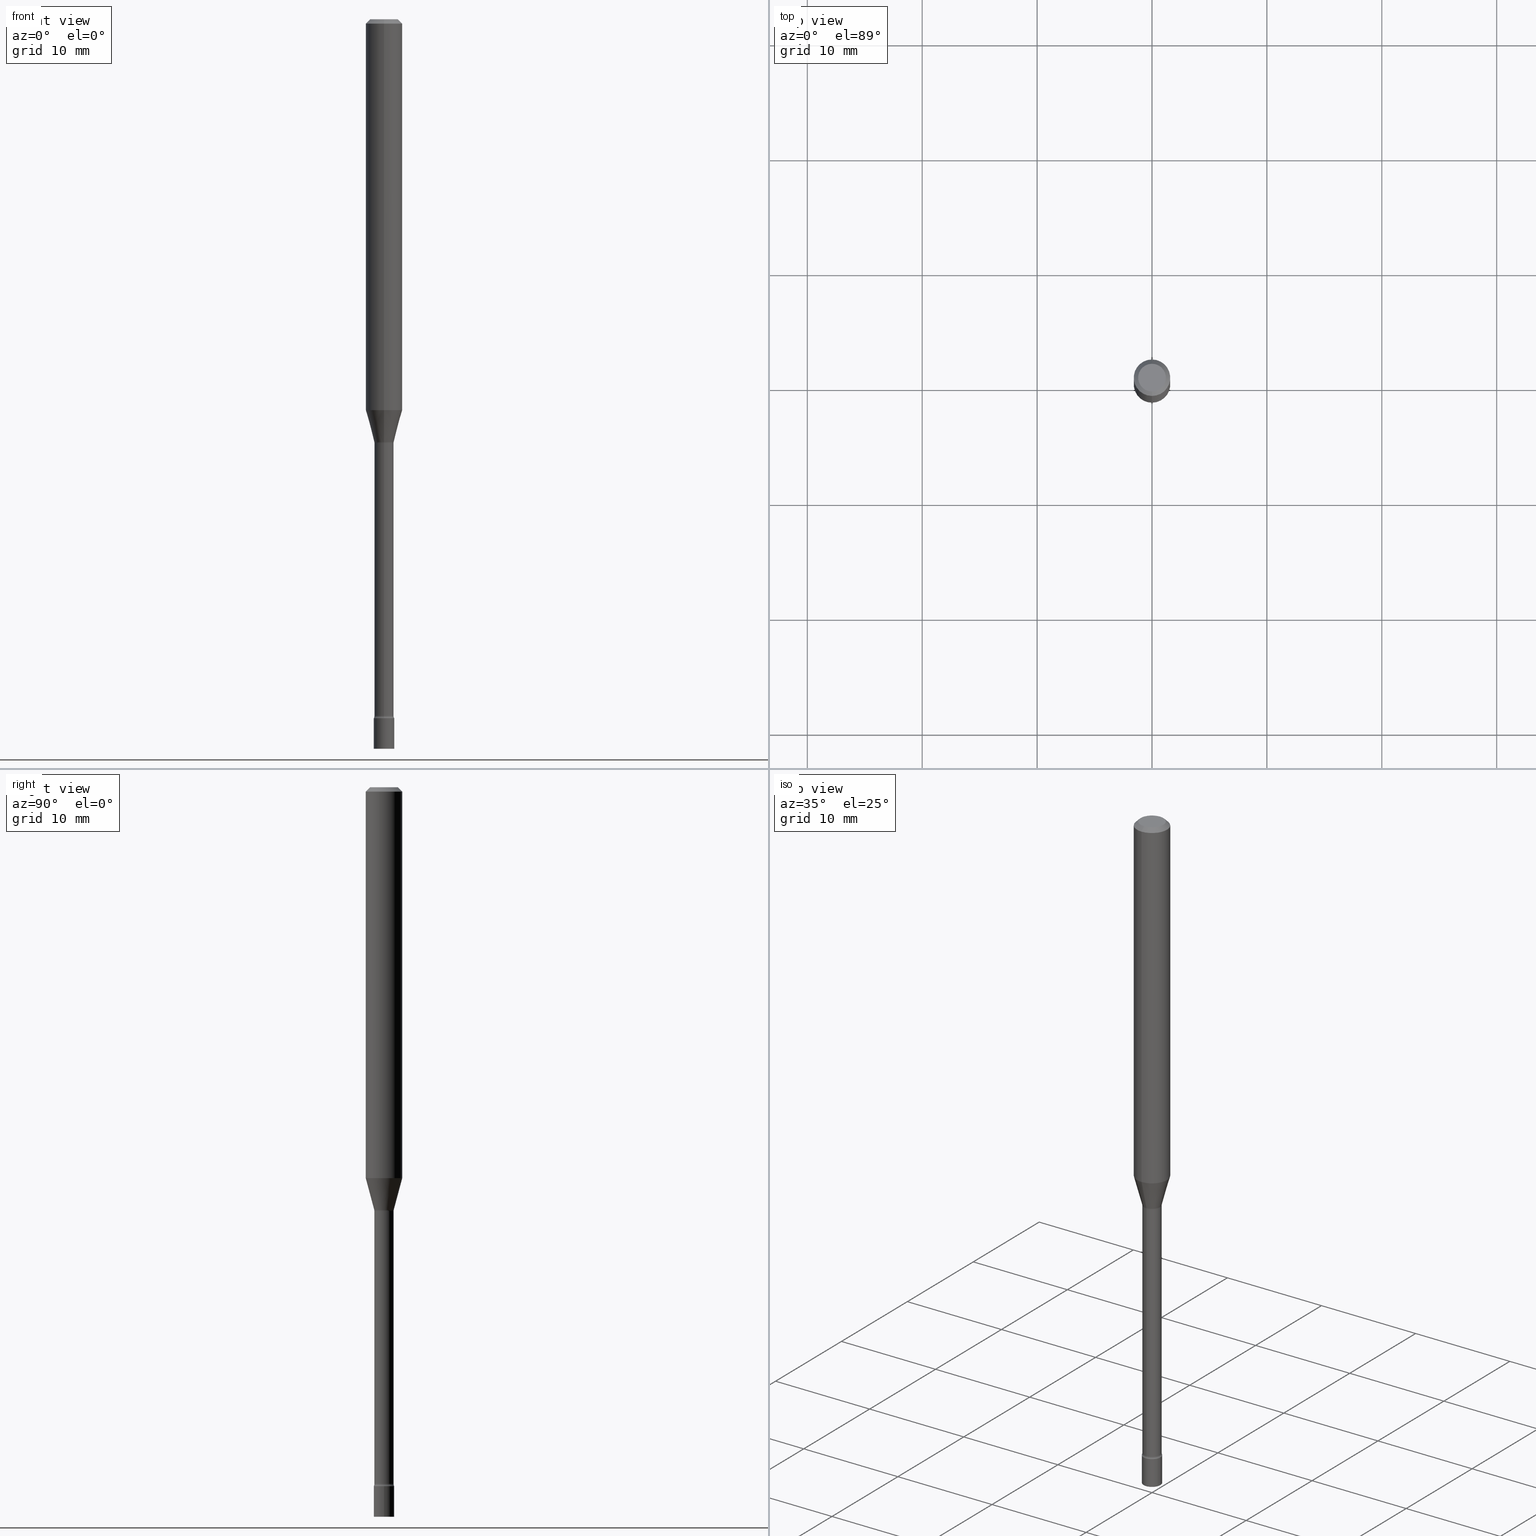
[diagram: canonical four-view strip — front | top / right | iso, engineering-drawing reading convention]
A machine part, canonical four-view strip (front | top / right | iso — engineering-drawing reading convention). The complete STEP part file that produces these views, byte-faithful:
ISO-10303-21;
HEADER;
FILE_DESCRIPTION (( 'STEP AP203' ),
    '1' );
FILE_NAME ('03631.STEP',
    '2024-03-08T22:13:49',
    ( '' ),
    ( '' ),
    'SwSTEP 2.0',
    'SolidWorks 2023',
    '' );
FILE_SCHEMA (( 'CONFIG_CONTROL_DESIGN' ));
ENDSEC;

DATA;
#1 = TOROIDAL_SURFACE ( 'NONE', #224, 0.04790000000000011610, 0.01499999999999997169 ) ;
#2 = EDGE_CURVE ( 'NONE', #339, #227, #19, .T. ) ;
#3 = CARTESIAN_POINT ( 'NONE',  ( 3.275824635247532374E-29, -4.676887466314633364E-15, -1.339531296095961554 ) ) ;
#4 = PRODUCT_RELATED_PRODUCT_CATEGORY ( 'detail', '', ( #357 ) ) ;
#5 = EDGE_LOOP ( 'NONE', ( #265, #259, #144, #417 ) ) ;
#6 = CARTESIAN_POINT ( 'NONE',  ( 0.03500000000000000333, -2.444036937190193250E-16, 1.706661871528577808E-30 ) ) ;
#7 = EDGE_LOOP ( 'NONE', ( #232, #252 ) ) ;
#8 = CYLINDRICAL_SURFACE ( 'NONE', #458, 0.06250000000000000000 ) ;
#9 = EDGE_CURVE ( 'NONE', #450, #457, #323, .T. ) ;
#10 = CIRCLE ( 'NONE', #331, 0.03289999999999999175 ) ;
#11 = APPROVAL_PERSON_ORGANIZATION ( #228, #105, #236 ) ;
#12 = DIRECTION ( 'NONE',  ( -2.445500635031716319E-29, 3.491435758123258259E-15, 1.000000000000000000 ) ) ;
#13 = EDGE_LOOP ( 'NONE', ( #383, #411 ) ) ;
#14 = ORIENTED_EDGE ( 'NONE', *, *, #184, .F. ) ;
#15 = ORIENTED_EDGE ( 'NONE', *, *, #147, .T. ) ;
#16 = AXIS2_PLACEMENT_3D ( 'NONE', #336, #23, #445 ) ;
#17 = EDGE_CURVE ( 'NONE', #450, #339, #405, .T. ) ;
#18 = DIRECTION ( 'NONE',  ( -6.982962677686265922E-15, -1.000000000000000000, 0.000000000000000000 ) ) ;
#19 = CIRCLE ( 'NONE', #172, 0.01500000000000003587 ) ;
#20 = DIRECTION ( 'NONE',  ( -6.982962677686266711E-15, -1.000000000000000000, 3.491435758123258259E-15 ) ) ;
#21 = ORIENTED_EDGE ( 'NONE', *, *, #231, .T. ) ;
#22 = APPROVAL_STATUS ( 'not_yet_approved' ) ;
#23 = DIRECTION ( 'NONE',  ( -2.445500635031716319E-29, 3.491435758123258259E-15, 1.000000000000000000 ) ) ;
#24 = ORIENTED_EDGE ( 'NONE', *, *, #178, .T. ) ;
#25 = DATE_AND_TIME ( #273, #424 ) ;
#26 = ADVANCED_FACE ( 'NONE', ( #317 ), #478, .T. ) ;
#27 = ORIENTED_EDGE ( 'NONE', *, *, #249, .T. ) ;
#28 = CIRCLE ( 'NONE', #109, 0.04749999999999999362 ) ;
#29 = LOCAL_TIME ( 17, 13, 49.00000000000000000, #466 ) ;
#30 = AXIS2_PLACEMENT_3D ( 'NONE', #157, #312, #278 ) ;
#31 = ORIENTED_EDGE ( 'NONE', *, *, #269, .T. ) ;
#32 = CARTESIAN_POINT ( 'NONE',  ( -4.364351673553916201E-16, -0.06250000000000000000, 2.182147348827036166E-16 ) ) ;
#33 = CARTESIAN_POINT ( 'NONE',  ( 2.486899575160934151E-16, 0.03499999999999162115, -2.395000000000000018 ) ) ;
#34 = PERSON_AND_ORGANIZATION ( #476, #207 ) ;
#35 = DIRECTION ( 'NONE',  ( 1.000000000000000000, -6.982962677686265922E-15, 4.876176775795936353E-29 ) ) ;
#36 = CARTESIAN_POINT ( 'NONE',  ( -0.03500000000000000333, -8.296710619302563893E-15, -2.395000000000000018 ) ) ;
#37 = UNCERTAINTY_MEASURE_WITH_UNIT (LENGTH_MEASURE( 1.000000000000000082E-05 ), #368, 'distance_accuracy_value', 'NONE');
#38 = AXIS2_PLACEMENT_3D ( 'NONE', #283, #196, #350 ) ;
#39 = MANIFOLD_SOLID_BREP ( 'Body-Move/Copy2[1]', #484 ) ;
#40 = FACE_OUTER_BOUND ( 'NONE', #148, .T. ) ;
#41 = AXIS2_PLACEMENT_3D ( 'NONE', #488, #52, #293 ) ;
#42 = DIRECTION ( 'NONE',  ( -2.445500635031716319E-29, 3.491435758123258259E-15, 1.000000000000000000 ) ) ;
#43 = CARTESIAN_POINT ( 'NONE',  ( 0.000000000000000000, 0.000000000000000000, 0.000000000000000000 ) ) ;
#44 = CARTESIAN_POINT ( 'NONE',  ( 6.113672015462842613E-29, -8.728703347107864943E-15, -2.500000000000000000 ) ) ;
#45 = DIRECTION ( 'NONE',  ( 1.000000000000000000, -6.982962677686276966E-15, 0.000000000000000000 ) ) ;
#46 = CC_DESIGN_APPROVAL ( #161, ( #435 ) ) ;
#47 = ADVANCED_FACE ( 'NONE', ( #40 ), #347, .T. ) ;
#48 = ADVANCED_FACE ( 'NONE', ( #81 ), #388, .F. ) ;
#49 = DIRECTION ( 'NONE',  ( 7.105427357601001859E-15, 1.000000000000000000, 0.000000000000000000 ) ) ;
#50 = DIRECTION ( 'NONE',  ( -1.000000000000000000, 6.982962677686265922E-15, -4.876176775795935793E-29 ) ) ;
#51 = ORIENTED_EDGE ( 'NONE', *, *, #422, .T. ) ;
#52 = DIRECTION ( 'NONE',  ( -2.445500635031716319E-29, 3.491435758123258259E-15, 1.000000000000000000 ) ) ;
#53 = FACE_OUTER_BOUND ( 'NONE', #343, .T. ) ;
#54 = CONICAL_SURFACE ( 'NONE', #359, 0.03341111260566397012, 0.2617993877991502405 ) ;
#55 = LENGTH_MEASURE_WITH_UNIT ( LENGTH_MEASURE( 0.02539999999999999897 ), #101 );
#56 = ORIENTED_EDGE ( 'NONE', *, *, #239, .T. ) ;
#57 = CARTESIAN_POINT ( 'NONE',  ( 0.000000000000000000, 0.000000000000000000, 0.000000000000000000 ) ) ;
#58 = EDGE_CURVE ( 'NONE', #173, #177, #136, .T. ) ;
#59 = CARTESIAN_POINT ( 'NONE',  ( 3.403499704291234252E-16, 0.04789999999999493274, -1.451974787463811367 ) ) ;
#60 = CONICAL_SURFACE ( 'NONE', #423, 0.06250000000000000000, 0.7853981633974483900 ) ;
#61 = AXIS2_PLACEMENT_3D ( 'NONE', #474, #202, #285 ) ;
#62 = APPLICATION_CONTEXT ( 'configuration controlled 3d designs of mechanical parts and assemblies' ) ;
#63 = CYLINDRICAL_SURFACE ( 'NONE', #16, 0.06250000000000000000 ) ;
#64 = VERTEX_POINT ( 'NONE', #510 ) ;
#65 = APPROVAL_DATE_TIME ( #508, #127 ) ;
#66 = DIRECTION ( 'NONE',  ( -2.445500635031716319E-29, 3.491435758123258259E-15, 1.000000000000000000 ) ) ;
#67 = DIRECTION ( 'NONE',  ( -6.982962677686268288E-15, -1.000000000000000000, 0.000000000000000000 ) ) ;
#68 = PERSON_AND_ORGANIZATION ( #476, #207 ) ;
#69 = ORIENTED_EDGE ( 'NONE', *, *, #295, .T. ) ;
#70 = APPROVAL_ROLE ( '' ) ;
#71 = AXIS2_PLACEMENT_3D ( 'NONE', #216, #12, #414 ) ;
#72 = FACE_OUTER_BOUND ( 'NONE', #5, .T. ) ;
#73 = VERTEX_POINT ( 'NONE', #395 ) ;
#74 = CARTESIAN_POINT ( 'NONE',  ( 2.337685600650734449E-16, 0.03290000000000006808, -1.148682364422554388E-16 ) ) ;
#75 = DIRECTION ( 'NONE',  ( -2.445500635031716319E-29, 3.491435758123258259E-15, 1.000000000000000000 ) ) ;
#76 = LINE ( 'NONE', #399, #110 ) ;
#77 = ADVANCED_BREP_SHAPE_REPRESENTATION ( '03631', ( #39, #379, #88 ), #490 ) ;
#78 = CARTESIAN_POINT ( 'NONE',  ( -4.364351673553590303E-16, -0.06250000000000470457, -1.339531296095961332 ) ) ;
#79 = CARTESIAN_POINT ( 'NONE',  ( 3.541311132705443544E-29, -5.055921941810253520E-15, -1.448092501787273223 ) ) ;
#80 = AXIS2_PLACEMENT_3D ( 'NONE', #486, #520, #210 ) ;
#81 = FACE_OUTER_BOUND ( 'NONE', #13, .T. ) ;
#82 = CARTESIAN_POINT ( 'NONE',  ( 2.374002335562078674E-16, 0.03341111260565891861, -1.448092501787273223 ) ) ;
#83 = EDGE_CURVE ( 'NONE', #371, #292, #385, .T. ) ;
#84 = CC_DESIGN_PERSON_AND_ORGANIZATION_ASSIGNMENT ( #117, #277, ( #435 ) ) ;
#85 = CARTESIAN_POINT ( 'NONE',  ( -4.287811248607203282E-16, -0.06250000000000005551, -0.01499999999999981209 ) ) ;
#86 = ADVANCED_FACE ( 'NONE', ( #353 ), #258, .T. ) ;
#87 = AXIS2_PLACEMENT_3D ( 'NONE', #392, #42, #203 ) ;
#88 = AXIS2_PLACEMENT_3D ( 'NONE', #501, #145, #455 ) ;
#89 = EDGE_CURVE ( 'NONE', #400, #73, #100, .T. ) ;
#90 = AXIS2_PLACEMENT_3D ( 'NONE', #111, #268, #67 ) ;
#91 = CC_DESIGN_DATE_AND_TIME_ASSIGNMENT ( #471, #150, ( #256 ) ) ;
#92 = LINE ( 'NONE', #253, #99 ) ;
#93 = ORIENTED_EDGE ( 'NONE', *, *, #175, .T. ) ;
#94 = CYLINDRICAL_SURFACE ( 'NONE', #372, 0.03290000000000006808 ) ;
#95 = DIRECTION ( 'NONE',  ( -2.445500635031716319E-29, 3.491435758123258259E-15, 1.000000000000000000 ) ) ;
#96 = CARTESIAN_POINT ( 'NONE',  ( 3.407447217031516106E-16, 0.03341111260565891167, -1.448092501787273223 ) ) ;
#97 = TOROIDAL_SURFACE ( 'NONE', #447, 0.04790000000000011610, 0.01499999999999997169 ) ;
#98 = ORIENTED_EDGE ( 'NONE', *, *, #439, .F. ) ;
#99 = VECTOR ( 'NONE', #394, 39.37007874015748143 ) ;
#100 = CIRCLE ( 'NONE', #384, 0.03500000000000000333 ) ;
#101 =( LENGTH_UNIT ( ) NAMED_UNIT ( * ) SI_UNIT ( $, .METRE. ) );
#102 = ADVANCED_FACE ( 'NONE', ( #123 ), #391, .T. ) ;
#103 = DIRECTION ( 'NONE',  ( -2.445500635031716319E-29, 3.491435758123258259E-15, 1.000000000000000000 ) ) ;
#104 = EDGE_LOOP ( 'NONE', ( #332, #304, #309, #463 ) ) ;
#105 = APPROVAL ( #22, 'UNSPECIFIED' ) ;
#106 = DIRECTION ( 'NONE',  ( -2.445500635031716319E-29, 3.491435758123258259E-15, 1.000000000000000000 ) ) ;
#107 = ORIENTED_EDGE ( 'NONE', *, *, #386, .T. ) ;
#108 = ORIENTED_EDGE ( 'NONE', *, *, #83, .F. ) ;
#109 = AXIS2_PLACEMENT_3D ( 'NONE', #223, #106, #496 ) ;
#110 = VECTOR ( 'NONE', #213, 39.37007874015748143 ) ;
#111 = CARTESIAN_POINT ( 'NONE',  ( -3.344839122611367138E-16, -0.04790000000000507741, -1.451974787463810923 ) ) ;
#112 = MECHANICAL_CONTEXT ( 'NONE', #62, 'mechanical' ) ;
#113 = ORIENTED_EDGE ( 'NONE', *, *, #473, .T. ) ;
#114 = PERSON_AND_ORGANIZATION ( #476, #207 ) ;
#115 = ORIENTED_EDGE ( 'NONE', *, *, #175, .F. ) ;
#116 = DIMENSIONAL_EXPONENTS ( 1.000000000000000000, 0.000000000000000000, 0.000000000000000000, 0.000000000000000000, 0.000000000000000000, 0.000000000000000000, 0.000000000000000000 ) ;
#117 = PERSON_AND_ORGANIZATION ( #476, #207 ) ;
#118 = LOCAL_TIME ( 17, 13, 49.00000000000000000, #187 ) ;
#119 = CARTESIAN_POINT ( 'NONE',  ( 6.113672015462842613E-29, -8.728703347107864943E-15, -2.500000000000000000 ) ) ;
#120 = LINE ( 'NONE', #82, #152 ) ;
#121 = CALENDAR_DATE ( 2024, 8, 3 ) ;
#122 = CARTESIAN_POINT ( 'NONE',  ( 3.550759050110043662E-29, -5.069542874900639233E-15, -1.451974787463811145 ) ) ;
#123 = FACE_OUTER_BOUND ( 'NONE', #189, .T. ) ;
#124 = DIRECTION ( 'NONE',  ( -2.445468806185136877E-29, 3.491481338843145188E-15, 1.000000000000000000 ) ) ;
#125 = DIRECTION ( 'NONE',  ( -2.438088387897960049E-29, 3.491481338843145188E-15, 1.000000000000000000 ) ) ;
#126 = CARTESIAN_POINT ( 'NONE',  ( 3.668250952547581782E-31, -5.237153637184897940E-17, -0.01500000000000003067 ) ) ;
#127 = APPROVAL ( #314, 'UNSPECIFIED' ) ;
#128 = CIRCLE ( 'NONE', #87, 0.06250000000000000000 ) ;
#129 = CARTESIAN_POINT ( 'NONE',  ( 5.856974020900960838E-29, -8.361988640705202472E-15, -2.395000000000000018 ) ) ;
#130 = LINE ( 'NONE', #364, #233 ) ;
#131 = CARTESIAN_POINT ( 'NONE',  ( 4.440892098500955511E-16, 0.06249999999999995143, -0.01500000000000024751 ) ) ;
#132 = CARTESIAN_POINT ( 'NONE',  ( 4.364351673553919652E-16, 0.06249999999999995143, -0.01500000000000024751 ) ) ;
#133 = ORIENTED_EDGE ( 'NONE', *, *, #433, .F. ) ;
#134 = CARTESIAN_POINT ( 'NONE',  ( -2.297394720958425553E-16, -0.03290000000000506408, -1.451974787463811145 ) ) ;
#135 = CIRCLE ( 'NONE', #299, 0.03500000000000000333 ) ;
#136 = CIRCLE ( 'NONE', #198, 0.04749999999999999362 ) ;
#137 = CIRCLE ( 'NONE', #416, 0.03341111260566397012 ) ;
#138 =( NAMED_UNIT ( * ) PLANE_ANGLE_UNIT ( ) SI_UNIT ( $, .RADIAN. ) );
#139 = DIRECTION ( 'NONE',  ( -6.982962677686265922E-15, -1.000000000000000000, 3.491435758123258259E-15 ) ) ;
#140 = EDGE_LOOP ( 'NONE', ( #418, #425, #446, #181 ) ) ;
#141 = ORIENTED_EDGE ( 'NONE', *, *, #231, .F. ) ;
#142 = TOROIDAL_SURFACE ( 'NONE', #413, 0.04790000000000000507, 0.01500000000000003587 ) ;
#143 = ADVANCED_FACE ( 'NONE', ( #296 ), #149, .T. ) ;
#144 = ORIENTED_EDGE ( 'NONE', *, *, #9, .T. ) ;
#145 = DIRECTION ( 'NONE',  ( 0.000000000000000000, 0.000000000000000000, 1.000000000000000000 ) ) ;
#146 = PLANE ( 'NONE',  #307 ) ;
#147 = EDGE_CURVE ( 'NONE', #406, #292, #287, .T. ) ;
#148 = EDGE_LOOP ( 'NONE', ( #262, #107 ) ) ;
#149 = CYLINDRICAL_SURFACE ( 'NONE', #264, 0.03500000000000000333 ) ;
#150 = DATE_TIME_ROLE ( 'creation_date' ) ;
#151 = EDGE_LOOP ( 'NONE', ( #465, #69, #24, #141 ) ) ;
#152 = VECTOR ( 'NONE', #427, 39.37007874015748143 ) ;
#153 = DIRECTION ( 'NONE',  ( 1.000000000000000000, -6.982962677686265922E-15, 4.876176775795936353E-29 ) ) ;
#154 = ORIENTED_EDGE ( 'NONE', *, *, #444, .T. ) ;
#155 = ORIENTED_EDGE ( 'NONE', *, *, #89, .F. ) ;
#156 = ADVANCED_FACE ( 'NONE', ( #430 ), #492, .T. ) ;
#157 = CARTESIAN_POINT ( 'NONE',  ( 3.668250952547581782E-31, -5.237153637184897940E-17, -0.01500000000000003067 ) ) ;
#158 = CARTESIAN_POINT ( 'NONE',  ( 5.856897790813402508E-29, -8.362097806529333416E-15, -2.395000000000000018 ) ) ;
#159 = DIRECTION ( 'NONE',  ( -2.445500635031716319E-29, 3.491435758123258259E-15, 1.000000000000000000 ) ) ;
#160 = DIRECTION ( 'NONE',  ( -6.982962677686265922E-15, -1.000000000000000000, 0.000000000000000000 ) ) ;
#161 = APPROVAL ( #464, 'UNSPECIFIED' ) ;
#162 = LINE ( 'NONE', #74, #169 ) ;
#163 = FACE_OUTER_BOUND ( 'NONE', #222, .T. ) ;
#164 = AXIS2_PLACEMENT_3D ( 'NONE', #219, #300, #297 ) ;
#165 = LINE ( 'NONE', #85, #506 ) ;
#166 = EDGE_LOOP ( 'NONE', ( #420, #374, #188, #14 ) ) ;
#167 = CARTESIAN_POINT ( 'NONE',  ( -0.03500000000000000333, 2.486899575160350887E-16, -1.721627281589217108E-30 ) ) ;
#168 = EDGE_LOOP ( 'NONE', ( #500, #377, #211, #15 ) ) ;
#169 = VECTOR ( 'NONE', #387, 39.37007874015748143 ) ;
#170 = DIRECTION ( 'NONE',  ( -6.982962677686265922E-15, -1.000000000000000000, 3.491435758123257865E-15 ) ) ;
#171 = LOCAL_TIME ( 17, 13, 49.00000000000000000, #378 ) ;
#172 = AXIS2_PLACEMENT_3D ( 'NONE', #59, #308, #461 ) ;
#173 = VERTEX_POINT ( 'NONE', #396 ) ;
#174 = AXIS2_PLACEMENT_3D ( 'NONE', #316, #208, #358 ) ;
#175 = EDGE_CURVE ( 'NONE', #305, #406, #76, .T. ) ;
#176 = ORIENTED_EDGE ( 'NONE', *, *, #375, .F. ) ;
#177 = VERTEX_POINT ( 'NONE', #483 ) ;
#178 = EDGE_CURVE ( 'NONE', #328, #457, #130, .T. ) ;
#179 = FACE_OUTER_BOUND ( 'NONE', #310, .T. ) ;
#180 = SECURITY_CLASSIFICATION ( '', '', #428 ) ;
#181 = ORIENTED_EDGE ( 'NONE', *, *, #386, .F. ) ;
#182 = CARTESIAN_POINT ( 'NONE',  ( 0.000000000000000000, 0.000000000000000000, 0.000000000000000000 ) ) ;
#183 = ADVANCED_FACE ( 'NONE', ( #235 ), #8, .T. ) ;
#184 = EDGE_CURVE ( 'NONE', #328, #271, #481, .T. ) ;
#185 = CARTESIAN_POINT ( 'NONE',  ( 3.668250952547581782E-31, -5.237153637184897940E-17, -0.01500000000000003067 ) ) ;
#186 = ORIENTED_EDGE ( 'NONE', *, *, #452, .F. ) ;
#187 = COORDINATED_UNIVERSAL_TIME_OFFSET ( 5, 0, .BEHIND. ) ;
#188 = ORIENTED_EDGE ( 'NONE', *, *, #512, .T. ) ;
#189 = EDGE_LOOP ( 'NONE', ( #334, #505, #113, #218 ) ) ;
#190 = AXIS2_PLACEMENT_3D ( 'NONE', #479, #389, #517 ) ;
#191 = ORIENTED_EDGE ( 'NONE', *, *, #407, .F. ) ;
#192 = DIRECTION ( 'NONE',  ( -2.445500635031716319E-29, 3.491435758123258259E-15, 1.000000000000000000 ) ) ;
#193 = CARTESIAN_POINT ( 'NONE',  ( 2.337685600651317713E-16, 0.03289999999999492636, -1.451974787463811145 ) ) ;
#194 = PERSON_AND_ORGANIZATION_ROLE ( 'classification_officer' ) ;
#195 = CARTESIAN_POINT ( 'NONE',  ( 0.000000000000000000, 0.000000000000000000, 0.000000000000000000 ) ) ;
#196 = DIRECTION ( 'NONE',  ( -2.445500635031716319E-29, 3.491435758123258259E-15, 1.000000000000000000 ) ) ;
#197 = CIRCLE ( 'NONE', #71, 0.03290000000000014441 ) ;
#198 = AXIS2_PLACEMENT_3D ( 'NONE', #469, #245, #390 ) ;
#199 = CARTESIAN_POINT ( 'NONE',  ( 5.838179168722291637E-29, -8.335372575132119928E-15, -2.387345589506696619 ) ) ;
#200 = AXIS2_PLACEMENT_3D ( 'NONE', #238, #354, #50 ) ;
#201 = ADVANCED_FACE ( 'NONE', ( #330 ), #1, .F. ) ;
#202 = DIRECTION ( 'NONE',  ( -2.445500635031715758E-29, 3.491435758123258259E-15, 1.000000000000000000 ) ) ;
#203 = DIRECTION ( 'NONE',  ( -6.982962677686265922E-15, -1.000000000000000000, 4.370956789862821150E-15 ) ) ;
#204 = CARTESIAN_POINT ( 'NONE',  ( 2.412292587906128890E-16, 0.03289999999999180386, -2.387345589506696175 ) ) ;
#205 = CARTESIAN_POINT ( 'NONE',  ( 5.856974020900960838E-29, -8.361988640705202472E-15, -2.395000000000000018 ) ) ;
#206 = DIRECTION ( 'NONE',  ( -2.445468806185136597E-29, 3.491481338843145583E-15, 1.000000000000000000 ) ) ;
#207 = ORGANIZATION ( 'UNSPECIFIED', 'UNSPECIFIED', '' ) ;
#208 = DIRECTION ( 'NONE',  ( -2.445468806185136597E-29, 3.491481338843145583E-15, 1.000000000000000000 ) ) ;
#209 = EDGE_CURVE ( 'NONE', #339, #305, #120, .T. ) ;
#210 = DIRECTION ( 'NONE',  ( -6.982962677686265922E-15, -1.000000000000000000, 0.000000000000000000 ) ) ;
#211 = ORIENTED_EDGE ( 'NONE', *, *, #452, .T. ) ;
#212 = LINE ( 'NONE', #6, #402 ) ;
#213 = DIRECTION ( 'NONE',  ( -2.445500635031716319E-29, 3.491435758123258259E-15, 1.000000000000000000 ) ) ;
#214 = ORIENTED_EDGE ( 'NONE', *, *, #184, .T. ) ;
#215 = AXIS2_PLACEMENT_3D ( 'NONE', #44, #206, #45 ) ;
#216 = CARTESIAN_POINT ( 'NONE',  ( 5.838255155178791829E-29, -8.335263758201529460E-15, -2.387345589506696175 ) ) ;
#217 = EDGE_CURVE ( 'NONE', #497, #227, #162, .T. ) ;
#218 = ORIENTED_EDGE ( 'NONE', *, *, #444, .F. ) ;
#219 = CARTESIAN_POINT ( 'NONE',  ( 5.856897790813402508E-29, -8.362097806529333416E-15, -2.395000000000000018 ) ) ;
#220 = VERTEX_POINT ( 'NONE', #36 ) ;
#221 = FACE_OUTER_BOUND ( 'NONE', #7, .T. ) ;
#222 = EDGE_LOOP ( 'NONE', ( #494, #51, #31, #186 ) ) ;
#223 = CARTESIAN_POINT ( 'NONE',  ( 7.071428225012707058E-46, -1.009586217731292719E-31, -2.891607601206366996E-17 ) ) ;
#224 = AXIS2_PLACEMENT_3D ( 'NONE', #475, #159, #139 ) ;
#225 = VERTEX_POINT ( 'NONE', #33 ) ;
#226 = DATE_TIME_ROLE ( 'classification_date' ) ;
#227 = VERTEX_POINT ( 'NONE', #193 ) ;
#228 = PERSON_AND_ORGANIZATION ( #476, #207 ) ;
#229 = EDGE_LOOP ( 'NONE', ( #115, #154, #441, #442 ) ) ;
#230 = PERSON_AND_ORGANIZATION_ROLE ( 'creator' ) ;
#231 = EDGE_CURVE ( 'NONE', #227, #457, #10, .T. ) ;
#232 = ORIENTED_EDGE ( 'NONE', *, *, #58, .T. ) ;
#233 = VECTOR ( 'NONE', #288, 39.37007874015748143 ) ;
#234 = CC_DESIGN_PERSON_AND_ORGANIZATION_ASSIGNMENT ( #68, #230, ( #435 ) ) ;
#235 = FACE_OUTER_BOUND ( 'NONE', #229, .T. ) ;
#236 = APPROVAL_ROLE ( '' ) ;
#237 = DIRECTION ( 'NONE',  ( 1.000000000000000000, -6.982962677686276966E-15, 0.000000000000000000 ) ) ;
#238 = CARTESIAN_POINT ( 'NONE',  ( 2.444036937190804617E-16, 0.03499999999999127420, -2.500000000000000000 ) ) ;
#239 = EDGE_CURVE ( 'NONE', #328, #497, #382, .T. ) ;
#240 = ADVANCED_FACE ( 'NONE', ( #514 ), #54, .T. ) ;
#241 = DESIGN_CONTEXT ( 'detailed design', #487, 'design' ) ;
#242 = DIRECTION ( 'NONE',  ( -2.445468806185136597E-29, 3.491481338843145583E-15, 1.000000000000000000 ) ) ;
#243 = DIRECTION ( 'NONE',  ( -2.445500635031716319E-29, 3.491435758123258259E-15, 1.000000000000000000 ) ) ;
#244 = AXIS2_PLACEMENT_3D ( 'NONE', #126, #286, #436 ) ;
#245 = DIRECTION ( 'NONE',  ( -2.445500635031716319E-29, 3.491435758123258259E-15, 1.000000000000000000 ) ) ;
#246 = CARTESIAN_POINT ( 'NONE',  ( -2.444036937189607028E-16, -0.03500000000000834388, -2.395000000000000018 ) ) ;
#247 = DIRECTION ( 'NONE',  ( -6.982962677686265922E-15, -1.000000000000000000, 3.491435758123258259E-15 ) ) ;
#248 = CARTESIAN_POINT ( 'NONE',  ( 3.541311132705443544E-29, -5.055921941810253520E-15, -1.448092501787273223 ) ) ;
#249 = EDGE_CURVE ( 'NONE', #371, #305, #128, .T. ) ;
#250 = CC_DESIGN_SECURITY_CLASSIFICATION ( #180, ( #435 ) ) ;
#251 = DIRECTION ( 'NONE',  ( 4.937700262164548042E-15, 0.7071067811865451302, -0.7071067811865499042 ) ) ;
#252 = ORIENTED_EDGE ( 'NONE', *, *, #302, .T. ) ;
#253 = CARTESIAN_POINT ( 'NONE',  ( -2.333085523452891938E-16, -0.03341111260566902164, -1.448092501787273223 ) ) ;
#254 = CARTESIAN_POINT ( 'NONE',  ( 3.668250952547581782E-31, -5.237153637184897940E-17, -0.01500000000000003067 ) ) ;
#255 = ORIENTED_EDGE ( 'NONE', *, *, #2, .T. ) ;
#256 = PRODUCT_DEFINITION ( 'UNKNOWN', '', #435, #241 ) ;
#257 = CIRCLE ( 'NONE', #164, 0.03500000000000000333 ) ;
#258 = CONICAL_SURFACE ( 'NONE', #30, 0.06250000000000000000, 0.7853981633974483900 ) ;
#259 = ORIENTED_EDGE ( 'NONE', *, *, #17, .F. ) ;
#260 =( NAMED_UNIT ( * ) SI_UNIT ( $, .STERADIAN. ) SOLID_ANGLE_UNIT ( ) );
#261 = APPLICATION_PROTOCOL_DEFINITION ( 'international standard', 'config_control_design', 1994, #62 ) ;
#262 = ORIENTED_EDGE ( 'NONE', *, *, #298, .T. ) ;
#263 = DIRECTION ( 'NONE',  ( -2.445468806185136597E-29, 3.491481338843145583E-15, 1.000000000000000000 ) ) ;
#264 = AXIS2_PLACEMENT_3D ( 'NONE', #182, #263, #153 ) ;
#265 = ORIENTED_EDGE ( 'NONE', *, *, #2, .F. ) ;
#266 = CIRCLE ( 'NONE', #393, 0.06250000000000000000 ) ;
#267 = APPROVAL_DATE_TIME ( #25, #161 ) ;
#268 = DIRECTION ( 'NONE',  ( -1.000000000000000000, 6.982962677686265922E-15, -4.883557194083112901E-29 ) ) ;
#269 = EDGE_CURVE ( 'NONE', #292, #406, #491, .T. ) ;
#270 = PERSON_AND_ORGANIZATION ( #476, #207 ) ;
#271 = VERTEX_POINT ( 'NONE', #246 ) ;
#272 = PRODUCT_DEFINITION_SHAPE ( 'NONE', 'NONE',  #256 ) ;
#273 = CALENDAR_DATE ( 2024, 8, 3 ) ;
#274 = EDGE_CURVE ( 'NONE', #271, #225, #135, .T. ) ;
#275 = EDGE_LOOP ( 'NONE', ( #155, #176 ) ) ;
#276 = APPROVAL_PERSON_ORGANIZATION ( #345, #127, #70 ) ;
#277 = PERSON_AND_ORGANIZATION_ROLE ( 'design_supplier' ) ;
#278 = DIRECTION ( 'NONE',  ( 6.982962677686265922E-15, 1.000000000000000000, -3.483106191921935554E-15 ) ) ;
#279 = ADVANCED_FACE ( 'NONE', ( #163 ), #60, .T. ) ;
#280 = DIRECTION ( 'NONE',  ( -6.982962677686265922E-15, -1.000000000000000000, 0.000000000000000000 ) ) ;
#281 = COORDINATED_UNIVERSAL_TIME_OFFSET ( 5, 0, .BEHIND. ) ;
#282 = DIRECTION ( 'NONE',  ( -6.982962677686265922E-15, -1.000000000000000000, 3.491435758123258259E-15 ) ) ;
#283 = CARTESIAN_POINT ( 'NONE',  ( 5.838255155178791829E-29, -8.335263758201529460E-15, -2.387345589506696175 ) ) ;
#284 = LINE ( 'NONE', #167, #498 ) ;
#285 = DIRECTION ( 'NONE',  ( -6.982962677686265922E-15, -1.000000000000000000, 3.491435758123258259E-15 ) ) ;
#286 = DIRECTION ( 'NONE',  ( -2.445500635031716319E-29, 3.491435758123258259E-15, 1.000000000000000000 ) ) ;
#287 = CIRCLE ( 'NONE', #489, 0.06250000000000000000 ) ;
#288 = DIRECTION ( 'NONE',  ( -2.445500635031716319E-29, 3.491435758123258259E-15, 1.000000000000000000 ) ) ;
#289 = ADVANCED_FACE ( 'NONE', ( #53 ), #94, .T. ) ;
#290 = DIRECTION ( 'NONE',  ( 1.000000000000000000, -7.105427357601001070E-15, 4.926314950339255398E-29 ) ) ;
#291 = CC_DESIGN_DATE_AND_TIME_ASSIGNMENT ( #431, #226, ( #180 ) ) ;
#292 = VERTEX_POINT ( 'NONE', #493 ) ;
#293 = DIRECTION ( 'NONE',  ( -6.982962677686265922E-15, -1.000000000000000000, 0.000000000000000000 ) ) ;
#294 = CIRCLE ( 'NONE', #366, 0.01499999999999996822 ) ;
#295 = EDGE_CURVE ( 'NONE', #497, #328, #197, .T. ) ;
#296 = FACE_OUTER_BOUND ( 'NONE', #408, .T. ) ;
#297 = DIRECTION ( 'NONE',  ( 1.000000000000000000, -6.982962677686276966E-15, 0.000000000000000000 ) ) ;
#298 = EDGE_CURVE ( 'NONE', #64, #220, #257, .T. ) ;
#299 = AXIS2_PLACEMENT_3D ( 'NONE', #205, #356, #518 ) ;
#300 = DIRECTION ( 'NONE',  ( -2.445468806185136597E-29, 3.491481338843145583E-15, 1.000000000000000000 ) ) ;
#301 = ORIENTED_EDGE ( 'NONE', *, *, #298, .F. ) ;
#302 = EDGE_CURVE ( 'NONE', #177, #173, #28, .T. ) ;
#303 = DIRECTION ( 'NONE',  ( -2.445500635031716319E-29, 3.491435758123258259E-15, 1.000000000000000000 ) ) ;
#304 = ORIENTED_EDGE ( 'NONE', *, *, #209, .T. ) ;
#305 = VERTEX_POINT ( 'NONE', #449 ) ;
#306 = APPROVAL_ROLE ( '' ) ;
#307 = AXIS2_PLACEMENT_3D ( 'NONE', #410, #370, #373 ) ;
#308 = DIRECTION ( 'NONE',  ( 1.000000000000000000, -7.105427357601001070E-15, 4.926314950339255398E-29 ) ) ;
#309 = ORIENTED_EDGE ( 'NONE', *, *, #249, .F. ) ;
#310 = EDGE_LOOP ( 'NONE', ( #98, #255, #21, #509 ) ) ;
#311 = APPLICATION_PROTOCOL_DEFINITION ( 'international standard', 'config_control_design', 1994, #487 ) ;
#312 = DIRECTION ( 'NONE',  ( 2.445500635031716319E-29, -3.491435758123258259E-15, -1.000000000000000000 ) ) ;
#313 = CARTESIAN_POINT ( 'NONE',  ( 3.550805264792791368E-29, -5.069476692844568029E-15, -1.451974787463811145 ) ) ;
#314 = APPROVAL_STATUS ( 'not_yet_approved' ) ;
#315 = DIRECTION ( 'NONE',  ( -2.445500635031716319E-29, 3.491435758123258259E-15, 1.000000000000000000 ) ) ;
#316 = CARTESIAN_POINT ( 'NONE',  ( 5.856897790813402508E-29, -8.362097806529333416E-15, -2.395000000000000018 ) ) ;
#317 = FACE_OUTER_BOUND ( 'NONE', #140, .T. ) ;
#318 = DIRECTION ( 'NONE',  ( -6.982962677686265922E-15, -1.000000000000000000, 0.000000000000000000 ) ) ;
#319 = DIRECTION ( 'NONE',  ( -6.982962677686265922E-15, -1.000000000000000000, 4.370956789862821150E-15 ) ) ;
#320 = DIRECTION ( 'NONE',  ( -2.445500635031716319E-29, 3.491435758123258259E-15, 1.000000000000000000 ) ) ;
#321 = ADVANCED_FACE ( 'NONE', ( #221 ), #146, .F. ) ;
#322 = TOROIDAL_SURFACE ( 'NONE', #348, 0.04790000000000000507, 0.01500000000000003587 ) ;
#323 = CIRCLE ( 'NONE', #90, 0.01500000000000003587 ) ;
#324 = DIRECTION ( 'NONE',  ( -4.851104656540964275E-15, -0.7071067811865500152, -0.7071067811865450192 ) ) ;
#325 = LINE ( 'NONE', #132, #467 ) ;
#326 = DIRECTION ( 'NONE',  ( -2.445468806185136877E-29, 3.491481338843145188E-15, 1.000000000000000000 ) ) ;
#327 = ADVANCED_FACE ( 'NONE', ( #179 ), #142, .F. ) ;
#328 = VERTEX_POINT ( 'NONE', #502 ) ;
#329 = CIRCLE ( 'NONE', #403, 0.03500000000000000333 ) ;
#330 = FACE_OUTER_BOUND ( 'NONE', #166, .T. ) ;
#331 = AXIS2_PLACEMENT_3D ( 'NONE', #313, #470, #280 ) ;
#332 = ORIENTED_EDGE ( 'NONE', *, *, #17, .T. ) ;
#333 = DIRECTION ( 'NONE',  ( 2.445500635031716319E-29, -3.491435758123258259E-15, -1.000000000000000000 ) ) ;
#334 = ORIENTED_EDGE ( 'NONE', *, *, #209, .F. ) ;
#335 = ADVANCED_FACE ( 'NONE', ( #456 ), #63, .T. ) ;
#336 = CARTESIAN_POINT ( 'NONE',  ( 0.000000000000000000, 0.000000000000000000, 0.000000000000000000 ) ) ;
#337 = EDGE_LOOP ( 'NONE', ( #191, #367, #214, #344 ) ) ;
#338 = DIRECTION ( 'NONE',  ( -6.982962677686265922E-15, -1.000000000000000000, 3.491435758123258259E-15 ) ) ;
#339 = VERTEX_POINT ( 'NONE', #96 ) ;
#340 = PERSON_AND_ORGANIZATION_ROLE ( 'creator' ) ;
#341 = ADVANCED_FACE ( 'NONE', ( #72 ), #322, .F. ) ;
#342 = ADVANCED_FACE ( 'NONE', ( #472 ), #97, .F. ) ;
#343 = EDGE_LOOP ( 'NONE', ( #56, #346, #380, #454 ) ) ;
#344 = ORIENTED_EDGE ( 'NONE', *, *, #274, .T. ) ;
#345 = PERSON_AND_ORGANIZATION ( #476, #207 ) ;
#346 = ORIENTED_EDGE ( 'NONE', *, *, #217, .T. ) ;
#347 = PLANE ( 'NONE',  #415 ) ;
#348 = AXIS2_PLACEMENT_3D ( 'NONE', #122, #419, #282 ) ;
#349 = AXIS2_PLACEMENT_3D ( 'NONE', #443, #95, #409 ) ;
#350 = DIRECTION ( 'NONE',  ( -6.982962677686265133E-15, -1.000000000000000000, 0.000000000000000000 ) ) ;
#351 = SHAPE_DEFINITION_REPRESENTATION ( #272, #77 ) ;
#352 = AXIS2_PLACEMENT_3D ( 'NONE', #516, #75, #160 ) ;
#353 = FACE_OUTER_BOUND ( 'NONE', #168, .T. ) ;
#354 = DIRECTION ( 'NONE',  ( 2.438088387897960049E-29, -3.491481338843145188E-15, -1.000000000000000000 ) ) ;
#355 = DIRECTION ( 'NONE',  ( -2.445500635031716319E-29, 3.491435758123258259E-15, 1.000000000000000000 ) ) ;
#356 = DIRECTION ( 'NONE',  ( -2.445500635031716319E-29, 3.491435758123258259E-15, 1.000000000000000000 ) ) ;
#357 = PRODUCT ( '03631', '03631', '', ( #112 ) ) ;
#358 = DIRECTION ( 'NONE',  ( 1.000000000000000000, -6.982962677686276966E-15, 0.000000000000000000 ) ) ;
#359 = AXIS2_PLACEMENT_3D ( 'NONE', #79, #315, #318 ) ;
#360 = CLOSED_SHELL ( 'NONE', ( #327, #289, #201, #279, #335, #240, #102, #183, #86, #321, #48, #342, #515, #341 ) ) ;
#361 = CC_DESIGN_PERSON_AND_ORGANIZATION_ASSIGNMENT ( #376, #340, ( #256 ) ) ;
#362 = CARTESIAN_POINT ( 'NONE',  ( 3.403499704291470910E-16, 0.04789999999999178248, -2.387345589506696619 ) ) ;
#363 = CYLINDRICAL_SURFACE ( 'NONE', #349, 0.03290000000000006808 ) ;
#364 = CARTESIAN_POINT ( 'NONE',  ( -2.297394720958786457E-16, -0.03290000000000006808, 1.148682364422554388E-16 ) ) ;
#365 = ORIENTED_EDGE ( 'NONE', *, *, #89, .T. ) ;
#366 = AXIS2_PLACEMENT_3D ( 'NONE', #362, #290, #49 ) ;
#367 = ORIENTED_EDGE ( 'NONE', *, *, #239, .F. ) ;
#368 =( CONVERSION_BASED_UNIT ( 'INCH', #55 ) LENGTH_UNIT ( ) NAMED_UNIT ( #116 ) );
#369 = CC_DESIGN_PERSON_AND_ORGANIZATION_ASSIGNMENT ( #34, #194, ( #180 ) ) ;
#370 = DIRECTION ( 'NONE',  ( 2.445500635031715758E-29, -3.491435758123258259E-15, -1.000000000000000000 ) ) ;
#371 = VERTEX_POINT ( 'NONE', #78 ) ;
#372 = AXIS2_PLACEMENT_3D ( 'NONE', #57, #103, #20 ) ;
#373 = DIRECTION ( 'NONE',  ( 6.982962677686265922E-15, 1.000000000000000000, -3.491435758123258259E-15 ) ) ;
#374 = ORIENTED_EDGE ( 'NONE', *, *, #407, .T. ) ;
#375 = EDGE_CURVE ( 'NONE', #73, #400, #434, .T. ) ;
#376 = PERSON_AND_ORGANIZATION ( #476, #207 ) ;
#377 = ORIENTED_EDGE ( 'NONE', *, *, #58, .F. ) ;
#378 = COORDINATED_UNIVERSAL_TIME_OFFSET ( 5, 0, .BEHIND. ) ;
#379 = MANIFOLD_SOLID_BREP ( 'Body-Move/Copy2[2]', #360 ) ;
#380 = ORIENTED_EDGE ( 'NONE', *, *, #404, .F. ) ;
#381 = CALENDAR_DATE ( 2024, 8, 3 ) ;
#382 = CIRCLE ( 'NONE', #38, 0.03290000000000014441 ) ;
#383 = ORIENTED_EDGE ( 'NONE', *, *, #274, .F. ) ;
#384 = AXIS2_PLACEMENT_3D ( 'NONE', #119, #429, #237 ) ;
#385 = LINE ( 'NONE', #32, #460 ) ;
#386 = EDGE_CURVE ( 'NONE', #220, #64, #440, .T. ) ;
#387 = DIRECTION ( 'NONE',  ( -2.445500635031716319E-29, 3.491435758123258259E-15, 1.000000000000000000 ) ) ;
#388 = PLANE ( 'NONE',  #61 ) ;
#389 = DIRECTION ( 'NONE',  ( -1.000000000000000000, 6.982962677686265922E-15, -4.883557194083112901E-29 ) ) ;
#390 = DIRECTION ( 'NONE',  ( -6.982962677686266711E-15, -1.000000000000000000, 3.491435758123258654E-15 ) ) ;
#391 = CONICAL_SURFACE ( 'NONE', #41, 0.03341111260566397012, 0.2617993877991502405 ) ;
#392 = CARTESIAN_POINT ( 'NONE',  ( 3.275824635247532374E-29, -4.676887466314633364E-15, -1.339531296095961554 ) ) ;
#393 = AXIS2_PLACEMENT_3D ( 'NONE', #3, #355, #319 ) ;
#394 = DIRECTION ( 'NONE',  ( -1.807323732225329745E-15, -0.2588190451025181305, 0.9659258262890689783 ) ) ;
#395 = CARTESIAN_POINT ( 'NONE',  ( -0.03500000000000000333, -8.296710619302563893E-15, -2.500000000000000000 ) ) ;
#396 = CARTESIAN_POINT ( 'NONE',  ( 3.840629472727447874E-16, 0.04749999999999999362, -1.947592745229184119E-16 ) ) ;
#397 = DIRECTION ( 'NONE',  ( -6.982962677686265922E-15, -1.000000000000000000, 0.000000000000000000 ) ) ;
#398 = CC_DESIGN_APPROVAL ( #105, ( #180 ) ) ;
#399 = CARTESIAN_POINT ( 'NONE',  ( 4.440892098500625669E-16, 0.06250000000000000000, -2.182147348827036166E-16 ) ) ;
#400 = VERTEX_POINT ( 'NONE', #438 ) ;
#401 = ORIENTED_EDGE ( 'NONE', *, *, #453, .T. ) ;
#402 = VECTOR ( 'NONE', #124, 39.37007874015748143 ) ;
#403 = AXIS2_PLACEMENT_3D ( 'NONE', #129, #495, #18 ) ;
#404 = EDGE_CURVE ( 'NONE', #457, #227, #513, .T. ) ;
#405 = CIRCLE ( 'NONE', #352, 0.03341111260566397012 ) ;
#406 = VERTEX_POINT ( 'NONE', #131 ) ;
#407 = EDGE_CURVE ( 'NONE', #497, #225, #294, .T. ) ;
#408 = EDGE_LOOP ( 'NONE', ( #365, #401, #301, #133 ) ) ;
#409 = DIRECTION ( 'NONE',  ( -6.982962677686266711E-15, -1.000000000000000000, 3.491435758123258259E-15 ) ) ;
#410 = CARTESIAN_POINT ( 'NONE',  ( 3.316907271900976096E-16, 0.04749999999999999362, -1.803012365168865738E-16 ) ) ;
#411 = ORIENTED_EDGE ( 'NONE', *, *, #512, .F. ) ;
#412 = CC_DESIGN_PERSON_AND_ORGANIZATION_ASSIGNMENT ( #114, #504, ( #357 ) ) ;
#413 = AXIS2_PLACEMENT_3D ( 'NONE', #499, #303, #338 ) ;
#414 = DIRECTION ( 'NONE',  ( -6.982962677686265133E-15, -1.000000000000000000, 0.000000000000000000 ) ) ;
#415 = AXIS2_PLACEMENT_3D ( 'NONE', #158, #125, #432 ) ;
#416 = AXIS2_PLACEMENT_3D ( 'NONE', #248, #480, #397 ) ;
#417 = ORIENTED_EDGE ( 'NONE', *, *, #404, .T. ) ;
#418 = ORIENTED_EDGE ( 'NONE', *, *, #453, .F. ) ;
#419 = DIRECTION ( 'NONE',  ( -2.445500635031716319E-29, 3.491435758123258259E-15, 1.000000000000000000 ) ) ;
#420 = ORIENTED_EDGE ( 'NONE', *, *, #295, .F. ) ;
#421 = COORDINATED_UNIVERSAL_TIME_OFFSET ( 5, 0, .BEHIND. ) ;
#422 = EDGE_CURVE ( 'NONE', #177, #292, #165, .T. ) ;
#423 = AXIS2_PLACEMENT_3D ( 'NONE', #185, #333, #451 ) ;
#424 = LOCAL_TIME ( 17, 13, 49.00000000000000000, #281 ) ;
#425 = ORIENTED_EDGE ( 'NONE', *, *, #375, .T. ) ;
#426 = AXIS2_PLACEMENT_3D ( 'NONE', #195, #242, #35 ) ;
#427 = DIRECTION ( 'NONE',  ( 1.839019923739599921E-15, 0.2588190451025249028, 0.9659258262890670910 ) ) ;
#428 = SECURITY_CLASSIFICATION_LEVEL ( 'unclassified' ) ;
#429 = DIRECTION ( 'NONE',  ( -2.445468806185136597E-29, 3.491481338843145583E-15, 1.000000000000000000 ) ) ;
#430 = FACE_OUTER_BOUND ( 'NONE', #275, .T. ) ;
#431 = DATE_AND_TIME ( #121, #468 ) ;
#432 = DIRECTION ( 'NONE',  ( 1.000000000000000000, -6.982962677686265922E-15, 4.876176775795935793E-29 ) ) ;
#433 = EDGE_CURVE ( 'NONE', #400, #64, #212, .T. ) ;
#434 = CIRCLE ( 'NONE', #215, 0.03500000000000000333 ) ;
#435 = PRODUCT_DEFINITION_FORMATION_WITH_SPECIFIED_SOURCE ( 'ANY', '', #357, .NOT_KNOWN. ) ;
#436 = DIRECTION ( 'NONE',  ( -6.982962677686265922E-15, -1.000000000000000000, 3.483106191921935554E-15 ) ) ;
#437 = APPROVAL_DATE_TIME ( #485, #105 ) ;
#438 = CARTESIAN_POINT ( 'NONE',  ( 0.03500000000000000333, -8.973107040826884909E-15, -2.500000000000000000 ) ) ;
#439 = EDGE_CURVE ( 'NONE', #339, #450, #137, .T. ) ;
#440 = CIRCLE ( 'NONE', #174, 0.03500000000000000333 ) ;
#441 = ORIENTED_EDGE ( 'NONE', *, *, #83, .T. ) ;
#442 = ORIENTED_EDGE ( 'NONE', *, *, #147, .F. ) ;
#443 = CARTESIAN_POINT ( 'NONE',  ( 0.000000000000000000, 0.000000000000000000, 0.000000000000000000 ) ) ;
#444 = EDGE_CURVE ( 'NONE', #305, #371, #266, .T. ) ;
#445 = DIRECTION ( 'NONE',  ( -6.982962677686265922E-15, -1.000000000000000000, 3.491435758123257865E-15 ) ) ;
#446 = ORIENTED_EDGE ( 'NONE', *, *, #433, .T. ) ;
#447 = AXIS2_PLACEMENT_3D ( 'NONE', #199, #66, #247 ) ;
#448 = FACE_OUTER_BOUND ( 'NONE', #151, .T. ) ;
#449 = CARTESIAN_POINT ( 'NONE',  ( 4.440892098500949595E-16, 0.06249999999999528849, -1.339531296095961999 ) ) ;
#450 = VERTEX_POINT ( 'NONE', #477 ) ;
#451 = DIRECTION ( 'NONE',  ( 6.982962677686265922E-15, 1.000000000000000000, -3.483106191921935554E-15 ) ) ;
#452 = EDGE_CURVE ( 'NONE', #173, #406, #325, .T. ) ;
#453 = EDGE_CURVE ( 'NONE', #73, #220, #284, .T. ) ;
#454 = ORIENTED_EDGE ( 'NONE', *, *, #178, .F. ) ;
#455 = DIRECTION ( 'NONE',  ( 1.000000000000000000, 0.000000000000000000, 0.000000000000000000 ) ) ;
#456 = FACE_OUTER_BOUND ( 'NONE', #507, .T. ) ;
#457 = VERTEX_POINT ( 'NONE', #134 ) ;
#458 = AXIS2_PLACEMENT_3D ( 'NONE', #43, #243, #170 ) ;
#459 = APPROVAL_PERSON_ORGANIZATION ( #270, #161, #306 ) ;
#460 = VECTOR ( 'NONE', #192, 39.37007874015748143 ) ;
#461 = DIRECTION ( 'NONE',  ( 7.105427357601001859E-15, 1.000000000000000000, 0.000000000000000000 ) ) ;
#462 = CALENDAR_DATE ( 2024, 8, 3 ) ;
#463 = ORIENTED_EDGE ( 'NONE', *, *, #473, .F. ) ;
#464 = APPROVAL_STATUS ( 'not_yet_approved' ) ;
#465 = ORIENTED_EDGE ( 'NONE', *, *, #217, .F. ) ;
#466 = COORDINATED_UNIVERSAL_TIME_OFFSET ( 5, 0, .BEHIND. ) ;
#467 = VECTOR ( 'NONE', #251, 39.37007874015748143 ) ;
#468 = LOCAL_TIME ( 17, 13, 49.00000000000000000, #421 ) ;
#469 = CARTESIAN_POINT ( 'NONE',  ( 7.071428225012707058E-46, -1.009586217731292719E-31, -2.891607601206366996E-17 ) ) ;
#470 = DIRECTION ( 'NONE',  ( -2.445500635031716319E-29, 3.491435758123258259E-15, 1.000000000000000000 ) ) ;
#471 = DATE_AND_TIME ( #462, #29 ) ;
#472 = FACE_OUTER_BOUND ( 'NONE', #337, .T. ) ;
#473 = EDGE_CURVE ( 'NONE', #450, #371, #92, .T. ) ;
#474 = CARTESIAN_POINT ( 'NONE',  ( 2.444036937190778979E-16, 0.03499999999999164196, -2.395000000000000018 ) ) ;
#475 = CARTESIAN_POINT ( 'NONE',  ( 5.838179168722291637E-29, -8.335372575132119928E-15, -2.387345589506696619 ) ) ;
#476 = PERSON ( 'UNSPECIFIED', 'UNSPECIFIED', 'UNSPECIFIED', ('UNSPECIFIED'), ('UNSPECIFIED'), ('UNSPECIFIED') ) ;
#477 = CARTESIAN_POINT ( 'NONE',  ( -2.333085523452891938E-16, -0.03341111260566902164, -1.448092501787273223 ) ) ;
#478 = CYLINDRICAL_SURFACE ( 'NONE', #426, 0.03500000000000000333 ) ;
#479 = CARTESIAN_POINT ( 'NONE',  ( -3.344839122611146257E-16, -0.04790000000000844971, -2.387345589506696175 ) ) ;
#480 = DIRECTION ( 'NONE',  ( -2.445500635031716319E-29, 3.491435758123258259E-15, 1.000000000000000000 ) ) ;
#481 = CIRCLE ( 'NONE', #190, 0.01499999999999996822 ) ;
#482 = CC_DESIGN_APPROVAL ( #127, ( #256 ) ) ;
#483 = CARTESIAN_POINT ( 'NONE',  ( -3.773273898774340269E-16, -0.04749999999999999362, 1.369271224987910843E-16 ) ) ;
#484 = CLOSED_SHELL ( 'NONE', ( #143, #47, #26, #156 ) ) ;
#485 = DATE_AND_TIME ( #519, #118 ) ;
#486 = CARTESIAN_POINT ( 'NONE',  ( 3.550805264792791368E-29, -5.069476692844568029E-15, -1.451974787463811145 ) ) ;
#487 = APPLICATION_CONTEXT ( 'configuration controlled 3d designs of mechanical parts and assemblies' ) ;
#488 = CARTESIAN_POINT ( 'NONE',  ( 3.541311132705443544E-29, -5.055921941810253520E-15, -1.448092501787273223 ) ) ;
#489 = AXIS2_PLACEMENT_3D ( 'NONE', #254, #320, #511 ) ;
#490 =( GEOMETRIC_REPRESENTATION_CONTEXT ( 3 ) GLOBAL_UNCERTAINTY_ASSIGNED_CONTEXT ( ( #37 ) ) GLOBAL_UNIT_ASSIGNED_CONTEXT ( ( #368, #138, #260 ) ) REPRESENTATION_CONTEXT ( 'NONE', 'WORKASPACE' ) );
#491 = CIRCLE ( 'NONE', #244, 0.06250000000000000000 ) ;
#492 = PLANE ( 'NONE',  #200 ) ;
#493 = CARTESIAN_POINT ( 'NONE',  ( -4.364351673553912750E-16, -0.06250000000000005551, -0.01499999999999981209 ) ) ;
#494 = ORIENTED_EDGE ( 'NONE', *, *, #302, .F. ) ;
#495 = DIRECTION ( 'NONE',  ( -2.445500635031716319E-29, 3.491435758123258259E-15, 1.000000000000000000 ) ) ;
#496 = DIRECTION ( 'NONE',  ( -6.982962677686266711E-15, -1.000000000000000000, 3.491435758123258654E-15 ) ) ;
#497 = VERTEX_POINT ( 'NONE', #204 ) ;
#498 = VECTOR ( 'NONE', #326, 39.37007874015748143 ) ;
#499 = CARTESIAN_POINT ( 'NONE',  ( 3.550759050110043662E-29, -5.069542874900639233E-15, -1.451974787463811145 ) ) ;
#500 = ORIENTED_EDGE ( 'NONE', *, *, #422, .F. ) ;
#501 = CARTESIAN_POINT ( 'NONE',  ( 0.000000000000000000, 0.000000000000000000, 0.000000000000000000 ) ) ;
#502 = CARTESIAN_POINT ( 'NONE',  ( -2.297394720958207631E-16, -0.03290000000000847802, -2.387345589506696175 ) ) ;
#503 = ORIENTED_EDGE ( 'NONE', *, *, #269, .F. ) ;
#504 = PERSON_AND_ORGANIZATION_ROLE ( 'design_owner' ) ;
#505 = ORIENTED_EDGE ( 'NONE', *, *, #439, .T. ) ;
#506 = VECTOR ( 'NONE', #324, 39.37007874015748143 ) ;
#507 = EDGE_LOOP ( 'NONE', ( #27, #93, #503, #108 ) ) ;
#508 = DATE_AND_TIME ( #381, #171 ) ;
#509 = ORIENTED_EDGE ( 'NONE', *, *, #9, .F. ) ;
#510 = CARTESIAN_POINT ( 'NONE',  ( 0.03500000000000000333, -8.606501500248353382E-15, -2.395000000000000018 ) ) ;
#511 = DIRECTION ( 'NONE',  ( -6.982962677686265922E-15, -1.000000000000000000, 3.483106191921935554E-15 ) ) ;
#512 = EDGE_CURVE ( 'NONE', #225, #271, #329, .T. ) ;
#513 = CIRCLE ( 'NONE', #80, 0.03289999999999999175 ) ;
#514 = FACE_OUTER_BOUND ( 'NONE', #104, .T. ) ;
#515 = ADVANCED_FACE ( 'NONE', ( #448 ), #363, .T. ) ;
#516 = CARTESIAN_POINT ( 'NONE',  ( 3.541311132705443544E-29, -5.055921941810253520E-15, -1.448092501787273223 ) ) ;
#517 = DIRECTION ( 'NONE',  ( -6.982962677686266711E-15, -1.000000000000000000, 0.000000000000000000 ) ) ;
#518 = DIRECTION ( 'NONE',  ( -6.982962677686265922E-15, -1.000000000000000000, 0.000000000000000000 ) ) ;
#519 = CALENDAR_DATE ( 2024, 8, 3 ) ;
#520 = DIRECTION ( 'NONE',  ( -2.445500635031716319E-29, 3.491435758123258259E-15, 1.000000000000000000 ) ) ;
ENDSEC;
END-ISO-10303-21;
